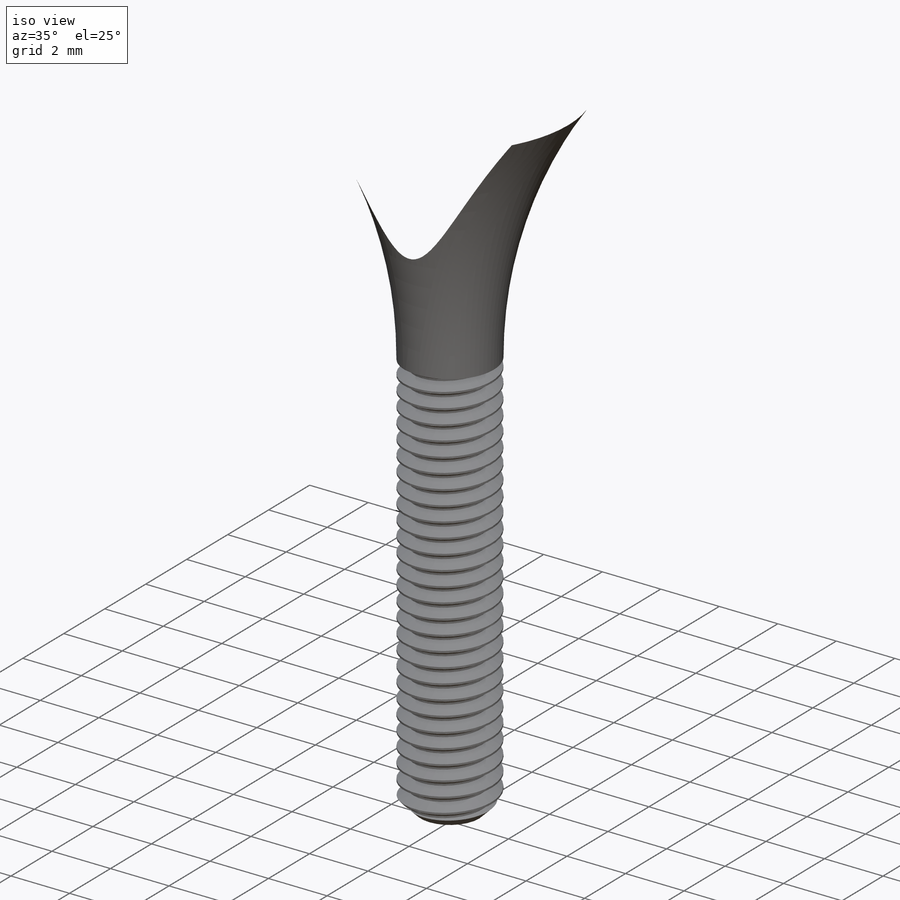
[diagram: iso view]
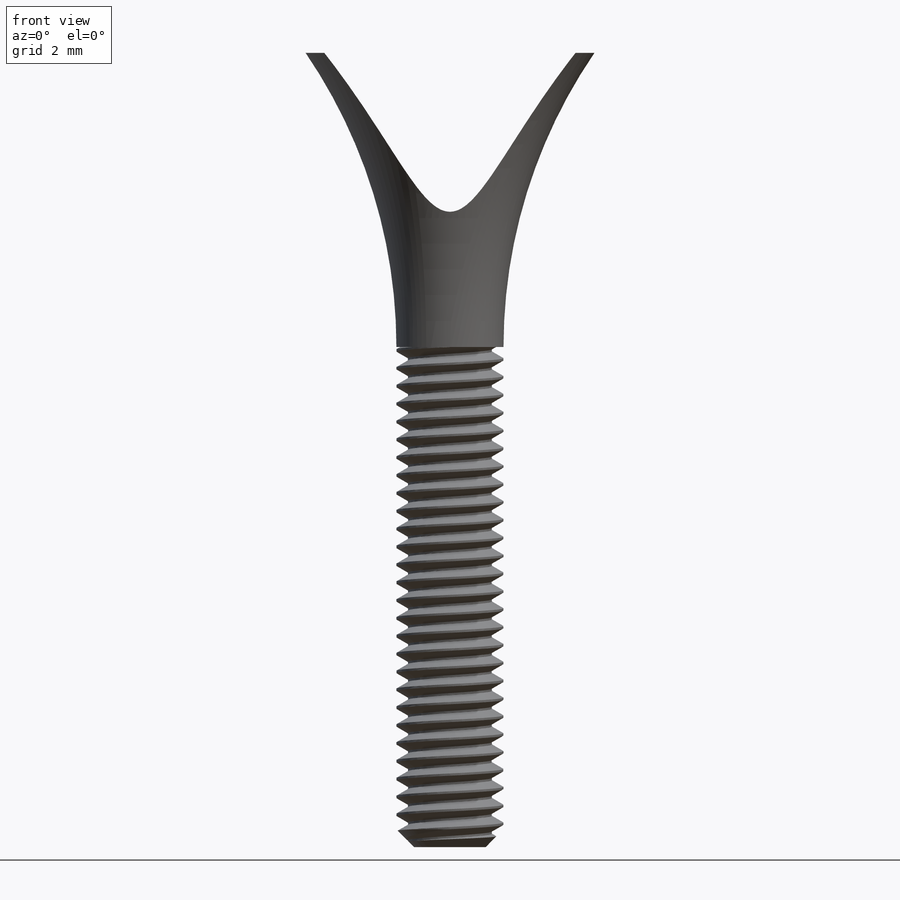
[diagram: front view]
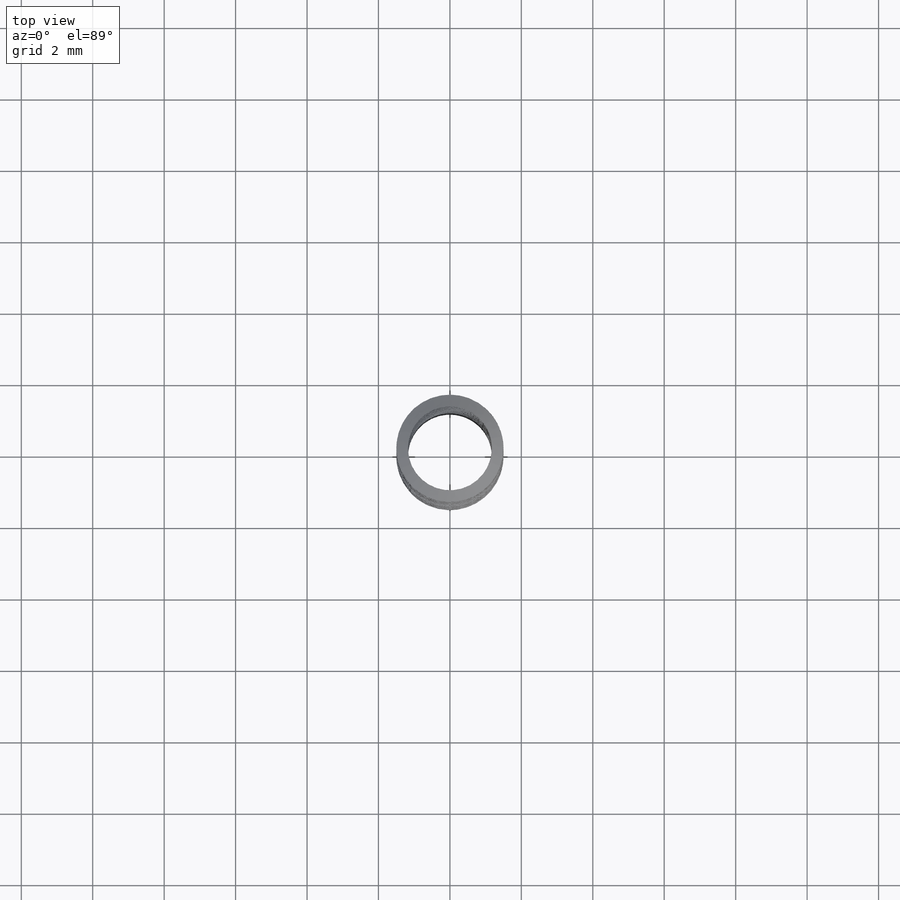
[diagram: top view]
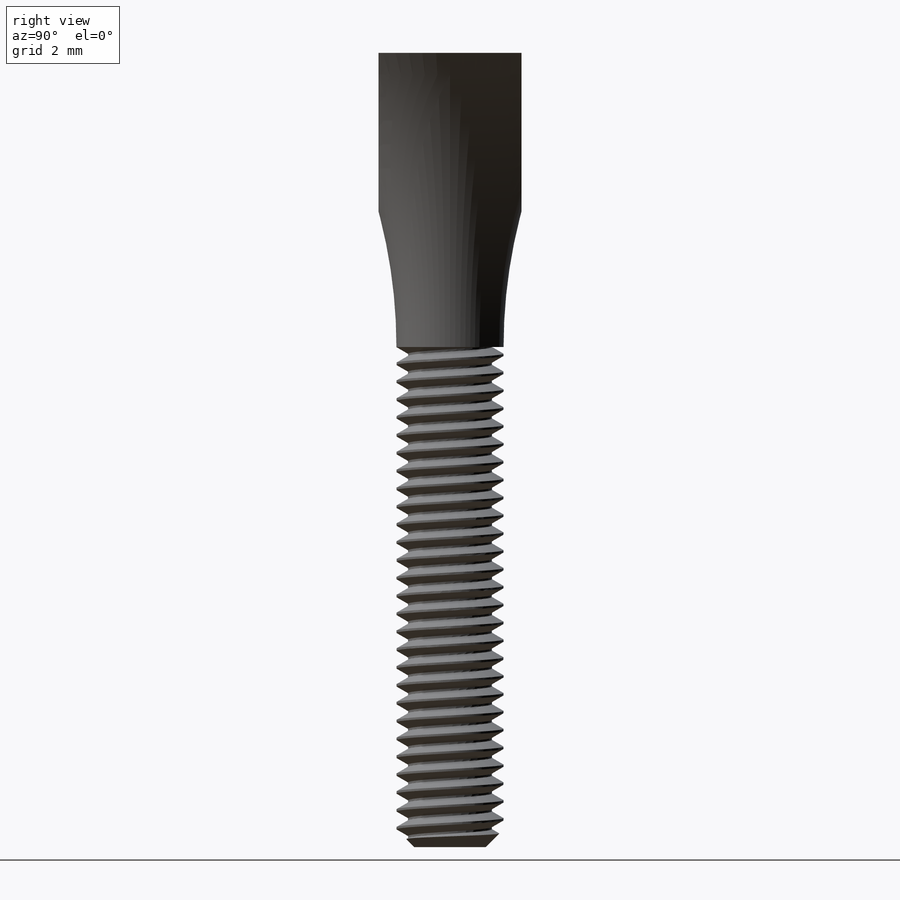
[diagram: right view]
SOLIDWORKS PART (.sldprt)
format: sldprt  version: not decoded by parser v0  size: 1,059,840 bytes
history: native  units: mm
features: sketch x10, cut_extrude x4, revolve x3, chamfer x2, material x1, helix x1, sweep x1 (+11 scaffold rows collapsed)
feature tree (33):
  scaffold x11  (default folders/planes/origin — collapsed)
  material  "Material <not specified>"
  sketch  "Sketch1"  dims[A=3.0mm Ball Dia=7.0mm B=9.8mm D=25.0mm E=14.0mm Thread Dia=3.0mm D2=2.875mm]
  revolve  "Revolve1"  Angle=360deg
  sketch  "Sketch12"  dims[D1=0.0mm]
  helix  "Helix/Spiral1"  Pitch=14.5mm pitch=0.5mm
  chamfer  "Chamfer2"  Distance=0.5mm Angle=45deg
  sketch  "Sketch13"  dims[c1.D1=~4.536876mm c2.D1=60.0deg c2.D2=0.0625mm c2.D3=0.25mm]
  sweep  "Cut-Sweep1"
  sketch  "Sketch4"  dims[D1=2.54mm]
  revolve  "Revolve2"  Angle=360deg
  sketch  "Sketch5"  dims[c1.F=4.0mm c1.D2=~11.456971mm c2.D2=35.0deg c3.D2=~141.62799mm c4.D2=35.0deg c5.D2=0.8mm c5.D1=3.0mm]
  cut_extrude  "Cut-Extrude1"  [1 undecoded]
  sketch  "Sketch6"
  cut_extrude  "Cut-Extrude2"  [1 undecoded]
  sketch  "Sketch7"
  revolve  "Revolve3"  Angle=360deg
  sketch  "Sketch8"  dims[C=6.3mm]
  cut_extrude  "Cut-Extrude3"  [1 undecoded]
  sketch  "Sketch10"
  cut_extrude  "Cut-Extrude4"  [1 undecoded]
  chamfer  "Chamfer1"  Distance=0.15mm Angle=45deg
  sketch  "Sketch11"  dims[D1=2.54mm D2=~3.69202mm Swivel=30.0deg]
decode coverage: 13 of 21 modeling features carry decoded parameters
note: ~ marks probable driven/reference dimensions
note: 4 parameter values undecoded
summary: no parameter record found for 4 features
note: suppression state not decoded; provenance and decode notes live in map.json
